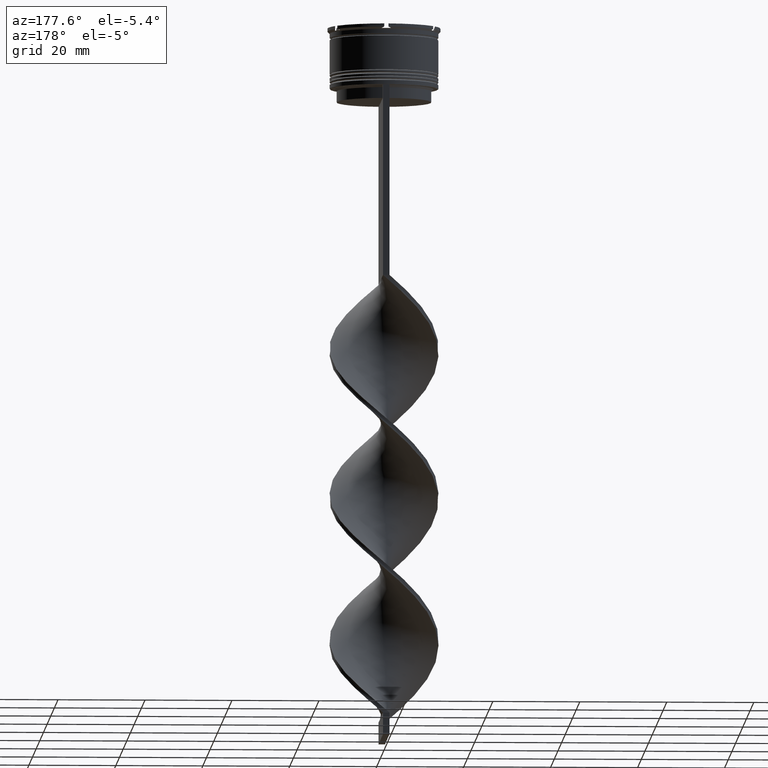
[diagram: clean part render]
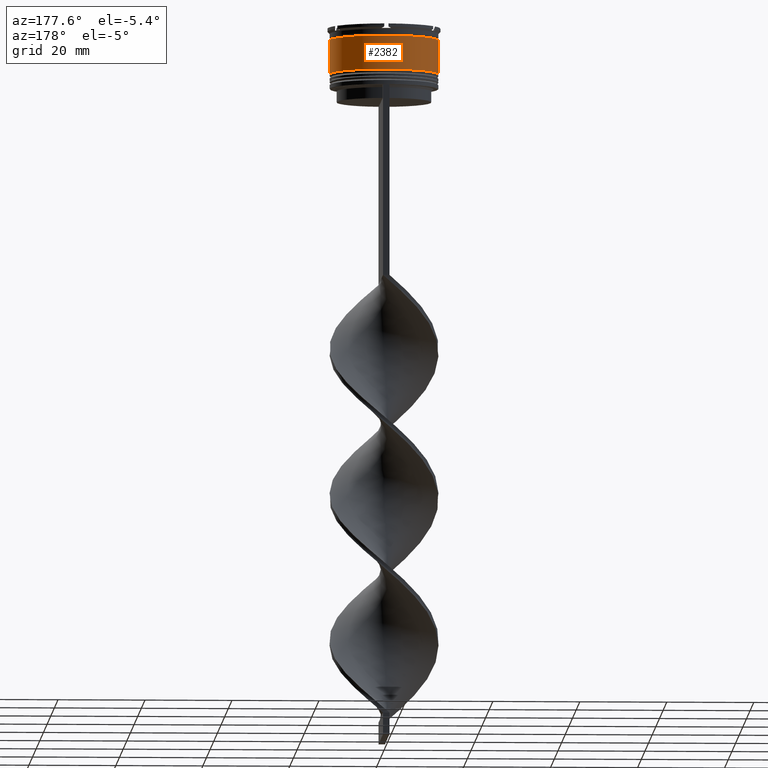
[diagram: same view with one face highlighted and labeled with its STEP entity id]
A machine part, auxiliary view. The second image highlights one B-rep face of the part: STEP entity #2382.
In plain terms, the highlighted cylindrical surface (partial cylindrical patch) has radius 12.5 mm, axis along (-0, -0, 1).
Its self-contained STEP definition (entity closure, byte-faithful):
#5 = VERTEX_POINT ( 'NONE', #439 ) ;
#94 = AXIS2_PLACEMENT_3D ( 'NONE', #2466, #4082, #1205 ) ;
#439 = CARTESIAN_POINT ( 'NONE',  ( -12.50000000000000355, 1.530808498934191916E-15, -10.50000000000000178 ) ) ;
#457 = EDGE_CURVE ( 'NONE', #2802, #906, #1343, .T. ) ;
#495 = CARTESIAN_POINT ( 'NONE',  ( 12.50000000000000000, 0.000000000000000000, 0.000000000000000000 ) ) ;
#584 = CARTESIAN_POINT ( 'NONE',  ( -12.50000000000000000, 1.530808498934191521E-15, 0.000000000000000000 ) ) ;
#906 = VERTEX_POINT ( 'NONE', #1942 ) ;
#997 = CARTESIAN_POINT ( 'NONE',  ( 0.000000000000000000, 0.000000000000000000, -2.699999999999999289 ) ) ;
#1050 = EDGE_CURVE ( 'NONE', #4144, #5, #2954, .T. ) ;
#1071 = CARTESIAN_POINT ( 'NONE',  ( 12.50000000000000178, 0.000000000000000000, -10.50000000000000178 ) ) ;
#1181 = EDGE_CURVE ( 'NONE', #5, #906, #1186, .T. ) ;
#1182 = CYLINDRICAL_SURFACE ( 'NONE', #94, 12.50000000000000000 ) ;
#1185 = EDGE_CURVE ( 'NONE', #4144, #2802, #1755, .T. ) ;
#1186 = LINE ( 'NONE', #584, #3021 ) ;
#1205 = DIRECTION ( 'NONE',  ( 1.000000000000000000, 0.000000000000000000, 0.000000000000000000 ) ) ;
#1329 = DIRECTION ( 'NONE',  ( 1.000000000000000000, 0.000000000000000000, 0.000000000000000000 ) ) ;
#1343 = CIRCLE ( 'NONE', #3692, 12.49999999999999822 ) ;
#1419 = ORIENTED_EDGE ( 'NONE', *, *, #1185, .F. ) ;
#1755 = LINE ( 'NONE', #495, #2815 ) ;
#1883 = AXIS2_PLACEMENT_3D ( 'NONE', #2780, #4066, #2470 ) ;
#1942 = CARTESIAN_POINT ( 'NONE',  ( -12.49999999999999822, 1.530808498934191324E-15, -2.699999999999999289 ) ) ;
#2271 = EDGE_LOOP ( 'NONE', ( #3337, #3301, #2365, #1419 ) ) ;
#2365 = ORIENTED_EDGE ( 'NONE', *, *, #457, .F. ) ;
#2382 = ADVANCED_FACE ( 'NONE', ( #2776 ), #1182, .T. ) ;
#2387 = DIRECTION ( 'NONE',  ( -0.000000000000000000, -0.000000000000000000, 1.000000000000000000 ) ) ;
#2466 = CARTESIAN_POINT ( 'NONE',  ( 0.000000000000000000, 0.000000000000000000, 0.000000000000000000 ) ) ;
#2470 = DIRECTION ( 'NONE',  ( 1.000000000000000000, 0.000000000000000000, 0.000000000000000000 ) ) ;
#2776 = FACE_OUTER_BOUND ( 'NONE', #2271, .T. ) ;
#2780 = CARTESIAN_POINT ( 'NONE',  ( 0.000000000000000000, 0.000000000000000000, -10.50000000000000178 ) ) ;
#2802 = VERTEX_POINT ( 'NONE', #4017 ) ;
#2815 = VECTOR ( 'NONE', #3049, 1000.000000000000000 ) ;
#2922 = DIRECTION ( 'NONE',  ( -0.000000000000000000, -0.000000000000000000, 1.000000000000000000 ) ) ;
#2954 = CIRCLE ( 'NONE', #1883, 12.50000000000000178 ) ;
#3021 = VECTOR ( 'NONE', #2387, 1000.000000000000000 ) ;
#3049 = DIRECTION ( 'NONE',  ( -0.000000000000000000, -0.000000000000000000, 1.000000000000000000 ) ) ;
#3301 = ORIENTED_EDGE ( 'NONE', *, *, #1181, .T. ) ;
#3337 = ORIENTED_EDGE ( 'NONE', *, *, #1050, .T. ) ;
#3692 = AXIS2_PLACEMENT_3D ( 'NONE', #997, #2922, #1329 ) ;
#4017 = CARTESIAN_POINT ( 'NONE',  ( 12.49999999999999822, 0.000000000000000000, -2.699999999999999289 ) ) ;
#4066 = DIRECTION ( 'NONE',  ( -0.000000000000000000, -0.000000000000000000, 1.000000000000000000 ) ) ;
#4082 = DIRECTION ( 'NONE',  ( -0.000000000000000000, -0.000000000000000000, 1.000000000000000000 ) ) ;
#4144 = VERTEX_POINT ( 'NONE', #1071 ) ;